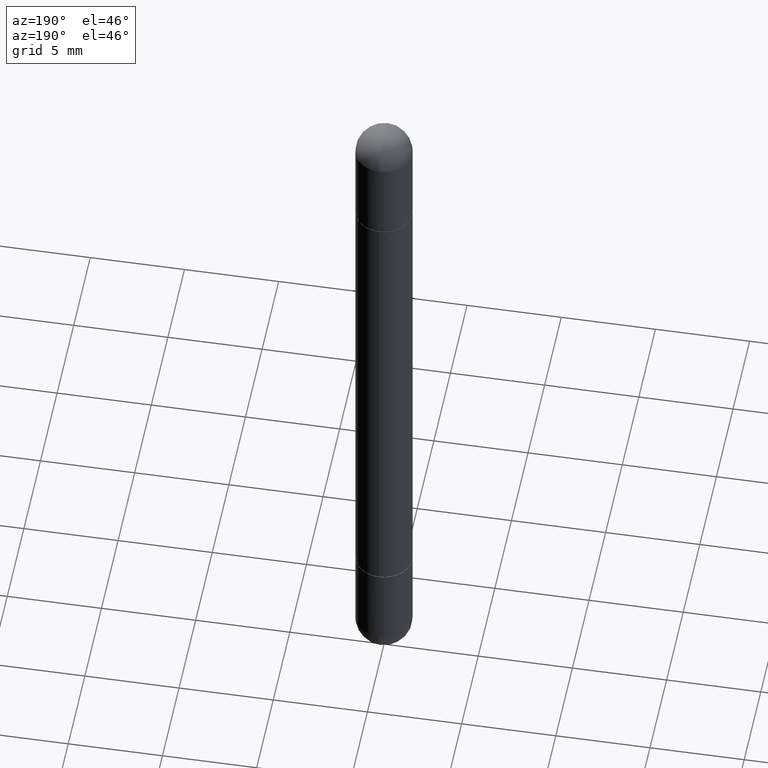
[diagram: clean part render]
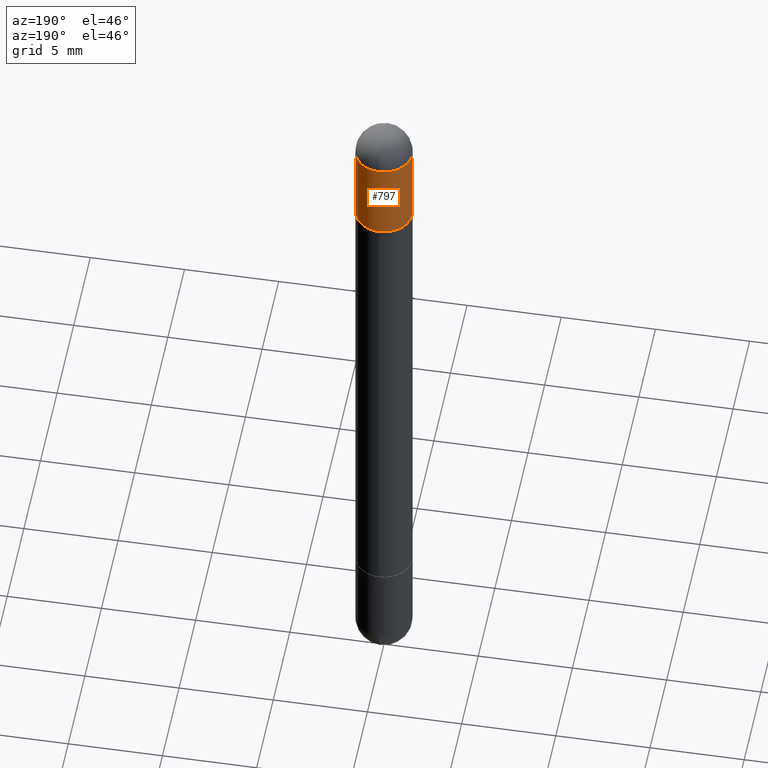
[diagram: same view with one face highlighted and labeled with its STEP entity id]
A machine part, auxiliary view. The second image highlights one B-rep face of the part: STEP entity #797.
In plain terms, the highlighted cylindrical surface (edge-blend (fillet) strip) has radius 1.4999 mm, axis along (-0, 0, -1).
Its self-contained STEP definition (entity closure, byte-faithful):
#39 = VERTEX_POINT ( 'NONE', #642 ) ;
#48 = DIRECTION ( 'NONE',  ( 1.000000000000000000, -6.982962677686270655E-15, 0.000000000000000000 ) ) ;
#59 = AXIS2_PLACEMENT_3D ( 'NONE', #350, #363, #295 ) ;
#69 = VECTOR ( 'NONE', #624, 39.37007874015748143 ) ;
#73 = LINE ( 'NONE', #765, #69 ) ;
#90 = AXIS2_PLACEMENT_3D ( 'NONE', #731, #348, #48 ) ;
#93 = CYLINDRICAL_SURFACE ( 'NONE', #59, 0.05905000000000001914 ) ;
#96 = CARTESIAN_POINT ( 'NONE',  ( 3.514260947928350449E-29, -5.017433257984542594E-15, -0.05905000000000028976 ) ) ;
#98 = DIRECTION ( 'NONE',  ( 1.000000000000000000, -6.982962677686270655E-15, 0.000000000000000000 ) ) ;
#104 = FACE_OUTER_BOUND ( 'NONE', #810, .T. ) ;
#122 = CARTESIAN_POINT ( 'NONE',  ( 0.05905000000000001914, -4.811261284925853162E-15, -0.2362000000000003264 ) ) ;
#133 = ORIENTED_EDGE ( 'NONE', *, *, #641, .F. ) ;
#149 = AXIS2_PLACEMENT_3D ( 'NONE', #96, #370, #735 ) ;
#167 = EDGE_CURVE ( 'NONE', #332, #39, #266, .T. ) ;
#212 = CARTESIAN_POINT ( 'NONE',  ( 0.05905000000000001914, -5.120519244513884944E-15, -0.05905000000000028976 ) ) ;
#249 = VERTEX_POINT ( 'NONE', #212 ) ;
#266 = CIRCLE ( 'NONE', #621, 0.05905000000000001914 ) ;
#295 = DIRECTION ( 'NONE',  ( 1.000000000000000000, -6.982962677686266711E-15, 0.000000000000000000 ) ) ;
#305 = DIRECTION ( 'NONE',  ( -2.445468806185136877E-29, 3.491481338843145188E-15, -1.000000000000000000 ) ) ;
#314 = ORIENTED_EDGE ( 'NONE', *, *, #335, .F. ) ;
#332 = VERTEX_POINT ( 'NONE', #122 ) ;
#335 = EDGE_CURVE ( 'NONE', #249, #490, #663, .T. ) ;
#348 = DIRECTION ( 'NONE',  ( 2.445468806185136597E-29, -3.491481338843145583E-15, 1.000000000000000000 ) ) ;
#350 = CARTESIAN_POINT ( 'NONE',  ( 0.000000000000000000, 0.000000000000000000, -1.496100000000000207 ) ) ;
#361 = CARTESIAN_POINT ( 'NONE',  ( -0.05905000000000001914, -4.303062891628101254E-15, -0.05905000000000028976 ) ) ;
#363 = DIRECTION ( 'NONE',  ( -2.445468806185136597E-29, 3.491481338843145583E-15, -1.000000000000000000 ) ) ;
#369 = VERTEX_POINT ( 'NONE', #361 ) ;
#370 = DIRECTION ( 'NONE',  ( 2.445468806185136597E-29, -3.491481338843145583E-15, 1.000000000000000000 ) ) ;
#376 = LINE ( 'NONE', #619, #783 ) ;
#379 = EDGE_CURVE ( 'NONE', #490, #369, #771, .T. ) ;
#416 = CARTESIAN_POINT ( 'NONE',  ( 3.081046148912652946E-29, -4.398917338808479031E-15, -0.2362000000000003264 ) ) ;
#421 = DIRECTION ( 'NONE',  ( 2.445468806185136597E-29, -3.491481338843145583E-15, 1.000000000000000000 ) ) ;
#490 = VERTEX_POINT ( 'NONE', #635 ) ;
#561 = ORIENTED_EDGE ( 'NONE', *, *, #379, .F. ) ;
#619 = CARTESIAN_POINT ( 'NONE',  ( -0.05905000000000001914, 4.051124067684090655E-16, -1.496100000000000207 ) ) ;
#621 = AXIS2_PLACEMENT_3D ( 'NONE', #416, #421, #98 ) ;
#624 = DIRECTION ( 'NONE',  ( -2.445468806185136877E-29, 3.491481338843145188E-15, -1.000000000000000000 ) ) ;
#635 = CARTESIAN_POINT ( 'NONE',  ( 4.123439461174084467E-16, 0.05904999999999487742, -0.05905000000000008159 ) ) ;
#641 = EDGE_CURVE ( 'NONE', #369, #39, #376, .T. ) ;
#642 = CARTESIAN_POINT ( 'NONE',  ( -0.05905000000000001914, -4.303062891628101254E-15, -0.2362000000000003264 ) ) ;
#663 = CIRCLE ( 'NONE', #90, 0.05905000000000001914 ) ;
#681 = ORIENTED_EDGE ( 'NONE', *, *, #167, .T. ) ;
#712 = EDGE_CURVE ( 'NONE', #249, #332, #73, .T. ) ;
#731 = CARTESIAN_POINT ( 'NONE',  ( 3.514260947928350449E-29, -5.017433257984542594E-15, -0.05905000000000028976 ) ) ;
#735 = DIRECTION ( 'NONE',  ( 1.000000000000000000, -6.982962677686270655E-15, 0.000000000000000000 ) ) ;
#765 = CARTESIAN_POINT ( 'NONE',  ( 0.05905000000000001914, -4.123439461173741806E-16, -1.496100000000000207 ) ) ;
#771 = CIRCLE ( 'NONE', #149, 0.05905000000000001914 ) ;
#783 = VECTOR ( 'NONE', #305, 39.37007874015748143 ) ;
#797 = ADVANCED_FACE ( 'NONE', ( #104 ), #93, .T. ) ;
#805 = ORIENTED_EDGE ( 'NONE', *, *, #712, .T. ) ;
#810 = EDGE_LOOP ( 'NONE', ( #133, #561, #314, #805, #681 ) ) ;